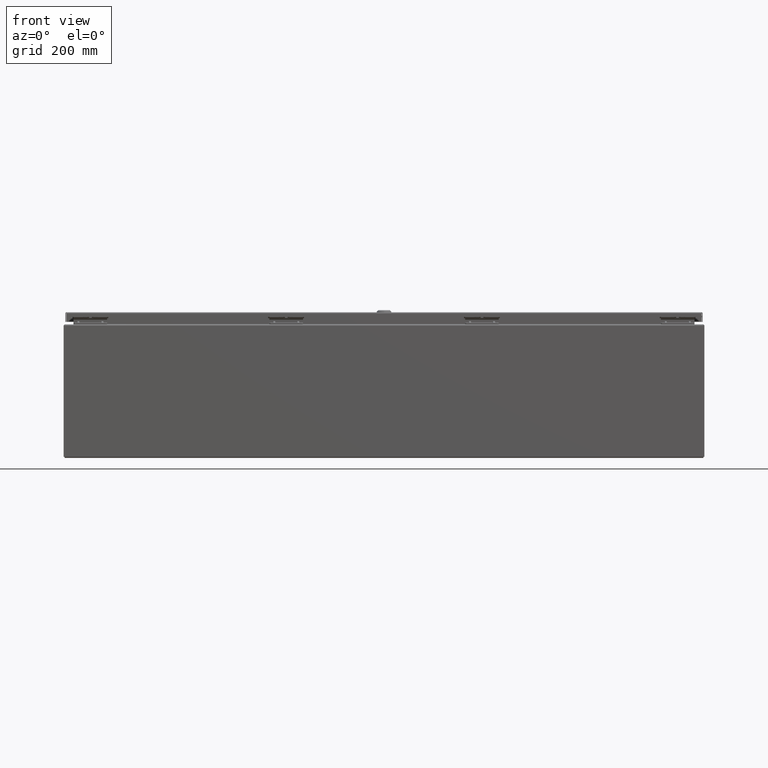
[diagram: clean part render]
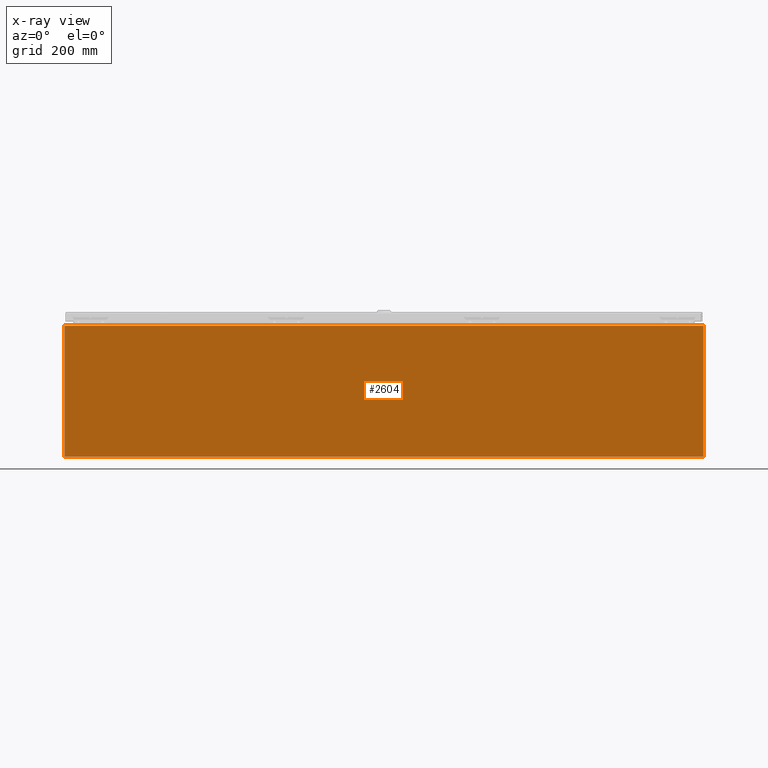
[diagram: x-ray — body ghosted, one internal face saturated and labeled with its STEP entity id]
A machine part, front view, then the same camera in x-ray: the body is ghosted and one INTERNAL B-rep face — a face not visible from any outside direction — is saturated and labeled: STEP entity #2604.
In plain terms, the highlighted planar face has unit normal (0, -1, -0).
Its self-contained STEP definition (entity closure, byte-faithful):
#1830=CARTESIAN_POINT('',(-1.330312E-015,23.925999999999988,9.894750000000011));
#1831=VERTEX_POINT('',#1830);
#1995=CARTESIAN_POINT('',(47.852000000000004,23.925999999999998,9.894750000000004));
#1996=VERTEX_POINT('',#1995);
#1997=CARTESIAN_POINT('',(47.852000000000004,23.926000000000002,9.894750000000009));
#1998=DIRECTION('',(-1.0,0.0,0.0));
#1999=VECTOR('',#1998,47.852000000000004);
#2000=LINE('',#1997,#1999);
#2001=EDGE_CURVE('',#1996,#1831,#2000,.T.);
#2556=CARTESIAN_POINT('',(47.852000000000004,23.926000000000027,0.105249999999998));
#2557=VERTEX_POINT('',#2556);
#2558=CARTESIAN_POINT('',(47.852000000000004,23.926000000000862,9.894750000000006));
#2559=DIRECTION('',(0.0,0.0,-1.0));
#2560=VECTOR('',#2559,9.789500000000007);
#2561=LINE('',#2558,#2560);
#2562=EDGE_CURVE('',#1996,#2557,#2561,.T.);
#2581=CARTESIAN_POINT('',(23.925999999999998,23.926000000001988,-11.889732513612804));
#2582=DIRECTION('',(2.437439E-016,-1.0,-1.658967E-013));
#2583=DIRECTION('',(1.0,0.0,0.0));
#2584=AXIS2_PLACEMENT_3D('',#2581,#2582,#2583);
#2585=PLANE('',#2584);
#2586=ORIENTED_EDGE('',*,*,#2001,.T.);
#2587=CARTESIAN_POINT('',(-2.722572E-015,23.926000000000013,0.105250000000001));
#2588=VERTEX_POINT('',#2587);
#2589=CARTESIAN_POINT('',(-2.722572E-015,23.926000000000844,9.894750000000011));
#2590=DIRECTION('',(0.0,0.0,-1.0));
#2591=VECTOR('',#2590,9.789500000000009);
#2592=LINE('',#2589,#2591);
#2593=EDGE_CURVE('',#1831,#2588,#2592,.T.);
#2594=ORIENTED_EDGE('',*,*,#2593,.T.);
#2595=CARTESIAN_POINT('',(-3.552714E-015,23.926000000000005,0.105250000000004));
#2596=DIRECTION('',(1.0,0.0,0.0));
#2597=VECTOR('',#2596,47.852000000000004);
#2598=LINE('',#2595,#2597);
#2599=EDGE_CURVE('',#2588,#2557,#2598,.T.);
#2600=ORIENTED_EDGE('',*,*,#2599,.T.);
#2601=ORIENTED_EDGE('',*,*,#2562,.F.);
#2602=EDGE_LOOP('',(#2586,#2594,#2600,#2601));
#2603=FACE_OUTER_BOUND('',#2602,.T.);
#2604=ADVANCED_FACE('',(#2603),#2585,.T.);